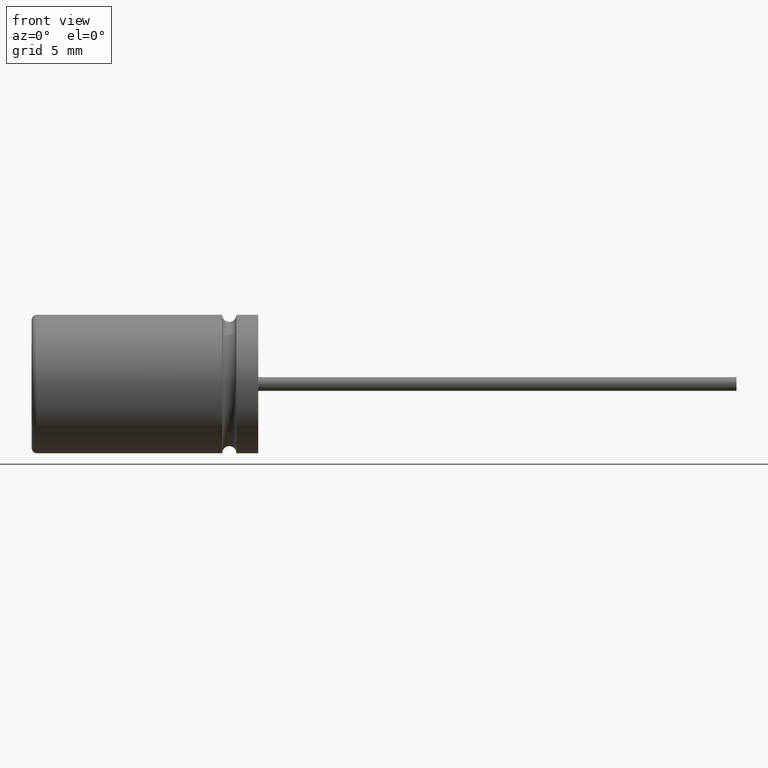
[diagram: clean part render]
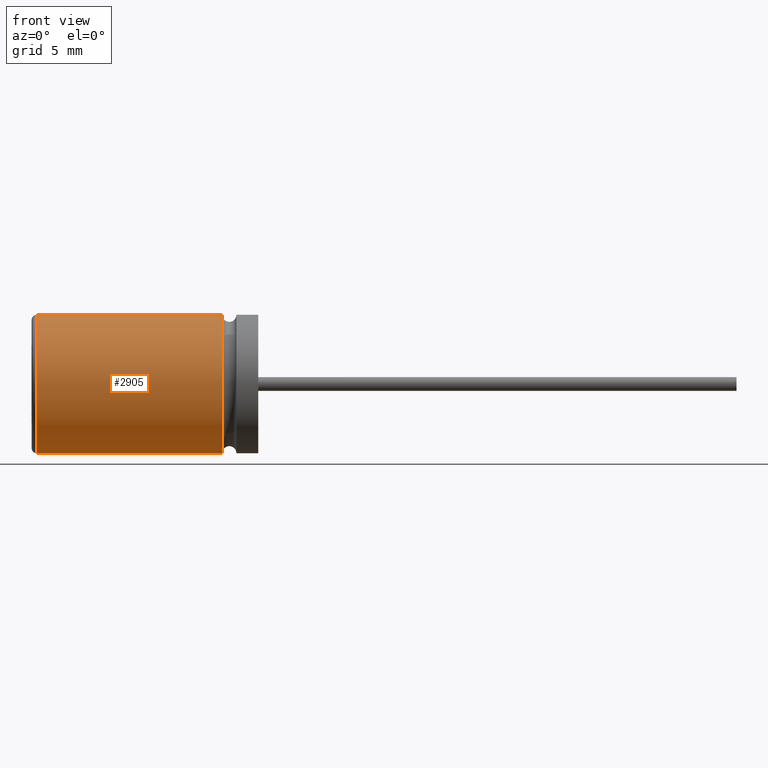
[diagram: same view with one face highlighted and labeled with its STEP entity id]
A machine part, front view. The second image highlights one B-rep face of the part: STEP entity #2905.
In plain terms, the highlighted cylindrical surface (partial cylindrical patch) has radius 2.75 mm, axis along (-1, -0, -0).
Its self-contained STEP definition (entity closure, byte-faithful):
#172 = EDGE_CURVE ( 'NONE', #663, #407, #2155, .T. ) ;
#186 = VECTOR ( 'NONE', #1826, 1000.000000000000000 ) ;
#238 = EDGE_CURVE ( 'NONE', #1297, #407, #1152, .T. ) ;
#407 = VERTEX_POINT ( 'NONE', #2466 ) ;
#436 = ORIENTED_EDGE ( 'NONE', *, *, #238, .F. ) ;
#460 = EDGE_LOOP ( 'NONE', ( #436, #1859, #3176, #1699 ) ) ;
#561 = DIRECTION ( 'NONE',  ( -1.000000000000000000, -0.0000000000000000000, -0.0000000000000000000 ) ) ;
#603 = EDGE_CURVE ( 'NONE', #2948, #663, #1058, .T. ) ;
#663 = VERTEX_POINT ( 'NONE', #1021 ) ;
#1021 = CARTESIAN_POINT ( 'NONE',  ( 0.2000000000000005100, 0.0000000000000000000, 2.750000000000000000 ) ) ;
#1058 = LINE ( 'NONE', #1434, #2098 ) ;
#1121 = AXIS2_PLACEMENT_3D ( 'NONE', #2909, #2606, #1272 ) ;
#1152 = LINE ( 'NONE', #1518, #186 ) ;
#1272 = DIRECTION ( 'NONE',  ( 0.0000000000000000000, 0.0000000000000000000, -1.000000000000000000 ) ) ;
#1279 = DIRECTION ( 'NONE',  ( 1.000000000000000000, -0.0000000000000000000, -0.0000000000000000000 ) ) ;
#1297 = VERTEX_POINT ( 'NONE', #2637 ) ;
#1434 = CARTESIAN_POINT ( 'NONE',  ( 9.000000000000000000, 0.0000000000000000000, 2.750000000000000000 ) ) ;
#1518 = CARTESIAN_POINT ( 'NONE',  ( 9.000000000000000000, 3.367778697655221000E-016, -2.750000000000000000 ) ) ;
#1597 = AXIS2_PLACEMENT_3D ( 'NONE', #2887, #1279, #2897 ) ;
#1611 = CARTESIAN_POINT ( 'NONE',  ( 7.571249999999998300, 3.367778697655221000E-016, 2.750000000000000000 ) ) ;
#1699 = ORIENTED_EDGE ( 'NONE', *, *, #172, .T. ) ;
#1723 = AXIS2_PLACEMENT_3D ( 'NONE', #2112, #561, #1853 ) ;
#1826 = DIRECTION ( 'NONE',  ( -1.000000000000000000, -0.0000000000000000000, -0.0000000000000000000 ) ) ;
#1853 = DIRECTION ( 'NONE',  ( 0.0000000000000000000, 0.0000000000000000000, 1.000000000000000000 ) ) ;
#1859 = ORIENTED_EDGE ( 'NONE', *, *, #2798, .F. ) ;
#2098 = VECTOR ( 'NONE', #3314, 1000.000000000000000 ) ;
#2112 = CARTESIAN_POINT ( 'NONE',  ( 9.000000000000000000, 0.0000000000000000000, 0.0000000000000000000 ) ) ;
#2154 = CIRCLE ( 'NONE', #1597, 2.750000000000000000 ) ;
#2155 = CIRCLE ( 'NONE', #1121, 2.750000000000000000 ) ;
#2466 = CARTESIAN_POINT ( 'NONE',  ( 0.2000000000000005100, 3.367778697655221000E-016, -2.750000000000000000 ) ) ;
#2606 = DIRECTION ( 'NONE',  ( 1.000000000000000000, 0.0000000000000000000, 0.0000000000000000000 ) ) ;
#2637 = CARTESIAN_POINT ( 'NONE',  ( 7.571249999999998300, 0.0000000000000000000, -2.750000000000000000 ) ) ;
#2798 = EDGE_CURVE ( 'NONE', #2948, #1297, #2154, .T. ) ;
#2887 = CARTESIAN_POINT ( 'NONE',  ( 7.571249999999999100, 0.0000000000000000000, 0.0000000000000000000 ) ) ;
#2897 = DIRECTION ( 'NONE',  ( 0.0000000000000000000, 0.0000000000000000000, -1.000000000000000000 ) ) ;
#2905 = ADVANCED_FACE ( 'NONE', ( #2987 ), #3321, .T. ) ;
#2909 = CARTESIAN_POINT ( 'NONE',  ( 0.2000000000000005100, 0.0000000000000000000, 0.0000000000000000000 ) ) ;
#2948 = VERTEX_POINT ( 'NONE', #1611 ) ;
#2987 = FACE_OUTER_BOUND ( 'NONE', #460, .T. ) ;
#3176 = ORIENTED_EDGE ( 'NONE', *, *, #603, .T. ) ;
#3314 = DIRECTION ( 'NONE',  ( -1.000000000000000000, -0.0000000000000000000, -0.0000000000000000000 ) ) ;
#3321 = CYLINDRICAL_SURFACE ( 'NONE', #1723, 2.750000000000000000 ) ;